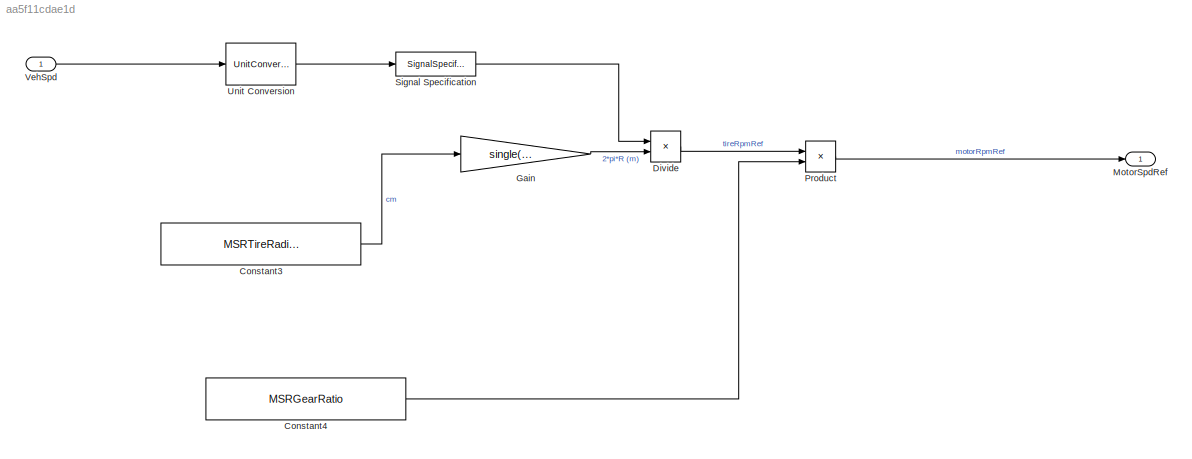
MODEL slx_aa5f11cdae1d
KIND model
CONFIG AbsTol = auto
CONFIG EnableMultiTasking = off
CONFIG FixedStep = ContIntTime
CONFIG MaxStep = auto
CONFIG MinStep = auto
CONFIG RelTol = 1e-3
CONFIG SampleTimeConstraint = Unconstrained
CONFIG SolverName = FixedStepDiscrete
CONFIG StartTime = 0.0
CONFIG StopTime = 10.0
BLOCK [Constant] Constant3
  Value = MSRTireRadius
BLOCK [Constant] Constant4
  Value = MSRGearRatio
BLOCK [Product] Divide
  Inputs = */
  Ports = [2, 1]
BLOCK [Gain] Gain
  Gain = single(2*pi/100)
BLOCK [Outport] MotorSpdRef
  NameLocation = right
  Unit = rpm
  VectorParamsAs1DForOutWhenUnconnected = off
BLOCK [Product] Product
  Ports = [2, 1]
BLOCK [SignalSpecification] Signal Specification
  Unit = m/min
BLOCK [UnitConversion] Unit Conversion
BLOCK [Inport] VehSpd
  NameLocation = left
  Unit = km/hr
LINE Constant3:1 -> Gain:1
LINE Constant4:1 -> Product:2
LINE Divide:1 -> Product:1
LINE Gain:1 -> Divide:2
LINE Product:1 -> MotorSpdRef:1
LINE Signal Specification:1 -> Divide:1
LINE Unit Conversion:1 -> Signal Specification:1
LINE VehSpd:1 -> Unit Conversion:1
